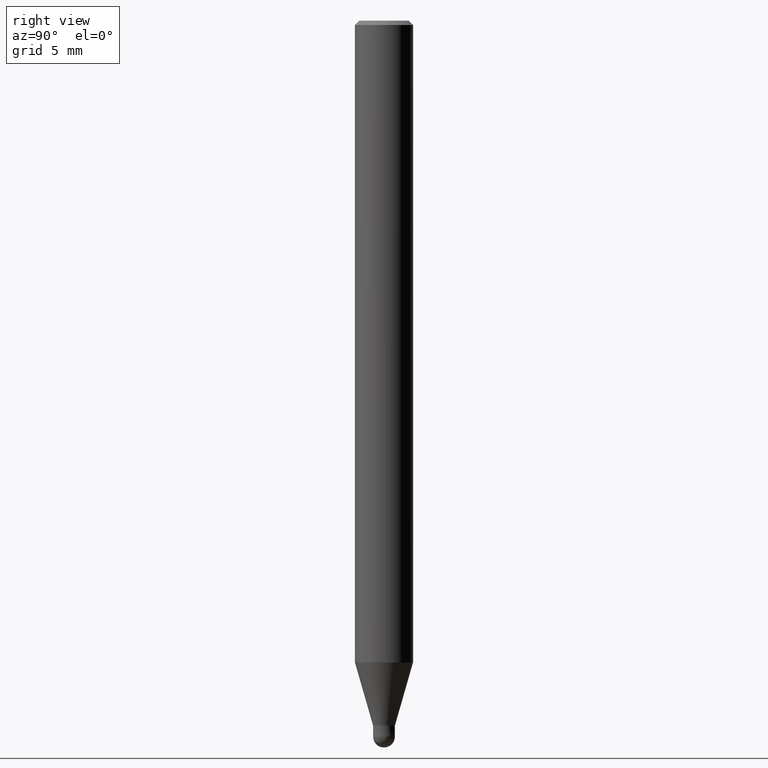
[diagram: clean part render]
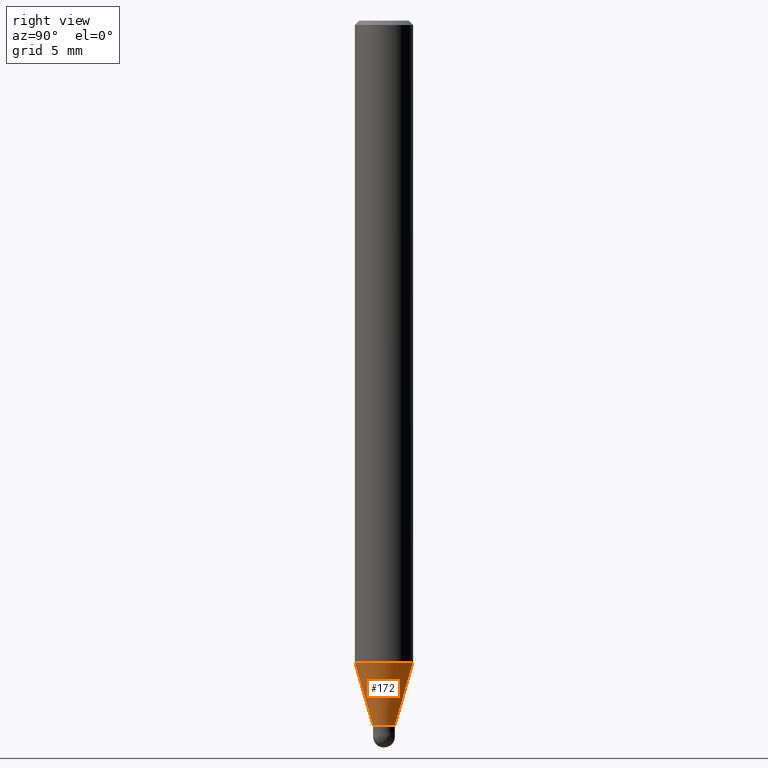
[diagram: same view with one face highlighted and labeled with its STEP entity id]
A machine part, right view. The second image highlights one B-rep face of the part: STEP entity #172.
In plain terms, the highlighted conical surface has half-angle 16.001 deg.
Its self-contained STEP definition (entity closure, byte-faithful):
#96=EDGE_CURVE('',#100,#166,#224,.T.);
#98=EDGE_CURVE('',#100,#154,#226,.T.);
#100=VERTEX_POINT('',#228);
#102=EDGE_CURVE('',#166,#184,#230,.T.);
#124=EDGE_CURVE('',#184,#154,#254,.T.);
#154=VERTEX_POINT('',#288);
#166=VERTEX_POINT('',#300);
#172=ADVANCED_FACE('',(#307),#308,.T.);
#184=VERTEX_POINT('',#322);
#224=LINE('',#359,#360);
#226=CIRCLE('',#363,1.99995);
#228=CARTESIAN_POINT('',(0.0,1.99995,-44.141));
#230=CIRCLE('',#368,0.74995);
#254=LINE('',#401,#402);
#288=CARTESIAN_POINT('',(2.44915147732706E-016,-1.99995,-44.141));
#300=CARTESIAN_POINT('',(0.0,0.74995,-48.5));
#307=FACE_OUTER_BOUND('',#464,.T.);
#308=CONICAL_SURFACE('',#465,1.37495,0.279268973819818);
#322=CARTESIAN_POINT('',(9.18393535049092E-017,-0.74995,-48.5));
#359=CARTESIAN_POINT('',(-1.68377250618808E-016,1.37495,-46.3205));
#360=VECTOR('',#521,1.0);
#363=AXIS2_PLACEMENT_3D('',#522,#523,#524);
#368=AXIS2_PLACEMENT_3D('',#525,#526,#527);
#401=CARTESIAN_POINT('',(1.68377250618808E-016,-1.37495,-46.3205));
#402=VECTOR('',#554,1.0);
#464=EDGE_LOOP('',(#614,#615,#616,#617));
#465=AXIS2_PLACEMENT_3D('',#618,#619,#620);
#521=DIRECTION('',(3.375664374138E-017,-0.27565301809855,-0.961257204713265));
#522=CARTESIAN_POINT('',(0.0,0.0,-44.141));
#523=DIRECTION('',(0.0,0.0,-1.0));
#524=DIRECTION('',(0.0,1.0,0.0));
#525=CARTESIAN_POINT('',(0.0,0.0,-48.5));
#526=DIRECTION('',(0.0,0.0,-1.0));
#527=DIRECTION('',(0.0,1.0,0.0));
#554=DIRECTION('',(3.375664374138E-017,-0.27565301809855,0.961257204713265));
#614=ORIENTED_EDGE('',*,*,#96,.F.);
#615=ORIENTED_EDGE('',*,*,#98,.T.);
#616=ORIENTED_EDGE('',*,*,#124,.F.);
#617=ORIENTED_EDGE('',*,*,#102,.F.);
#618=CARTESIAN_POINT('',(0.0,0.0,-46.3205));
#619=DIRECTION('',(-0.0,-0.0,1.0));
#620=DIRECTION('',(0.0,1.0,0.0));